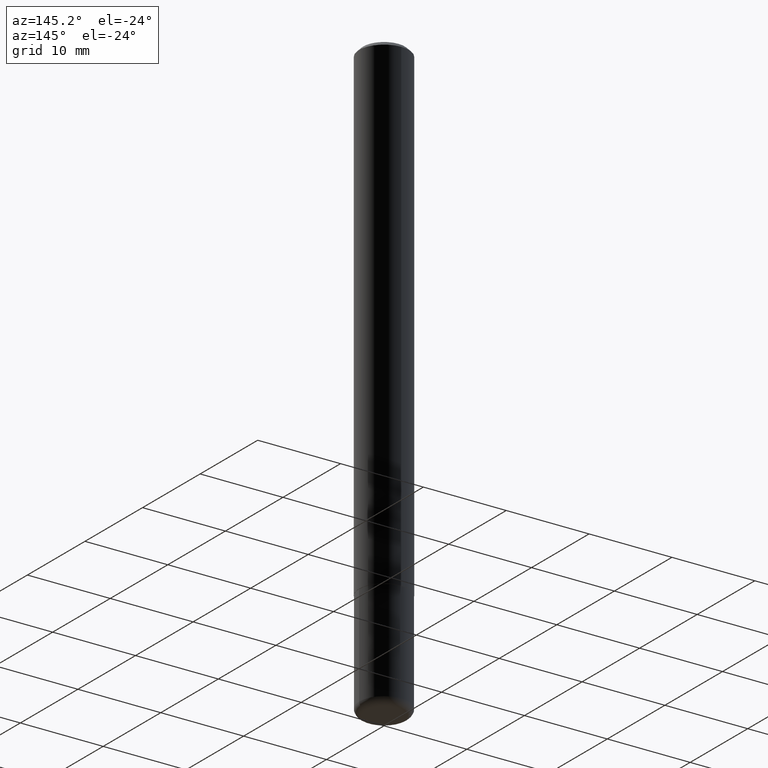
[diagram: clean part render]
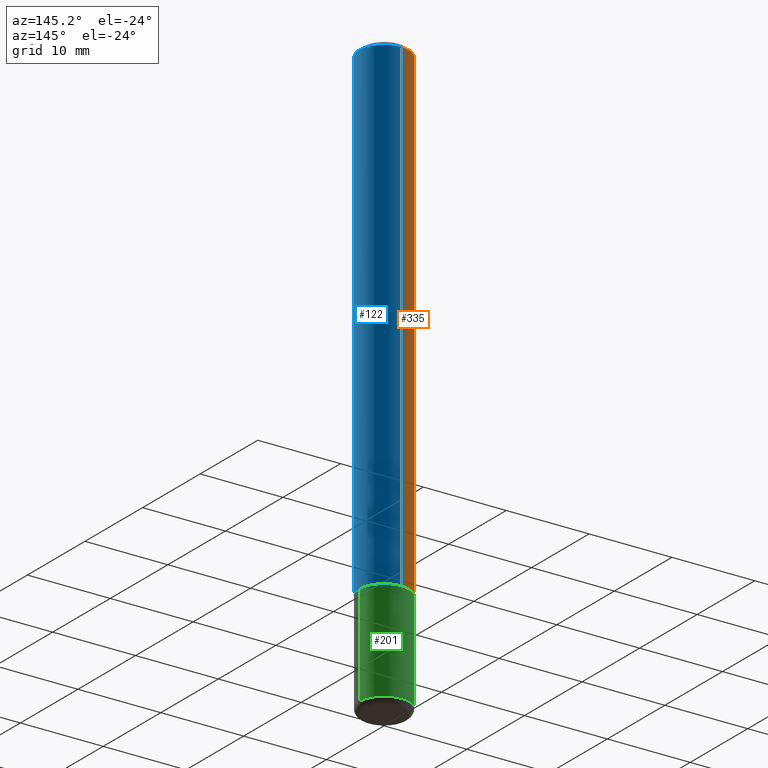
[diagram: same view with three faces highlighted in distinct colors, each labeled with its STEP entity id]
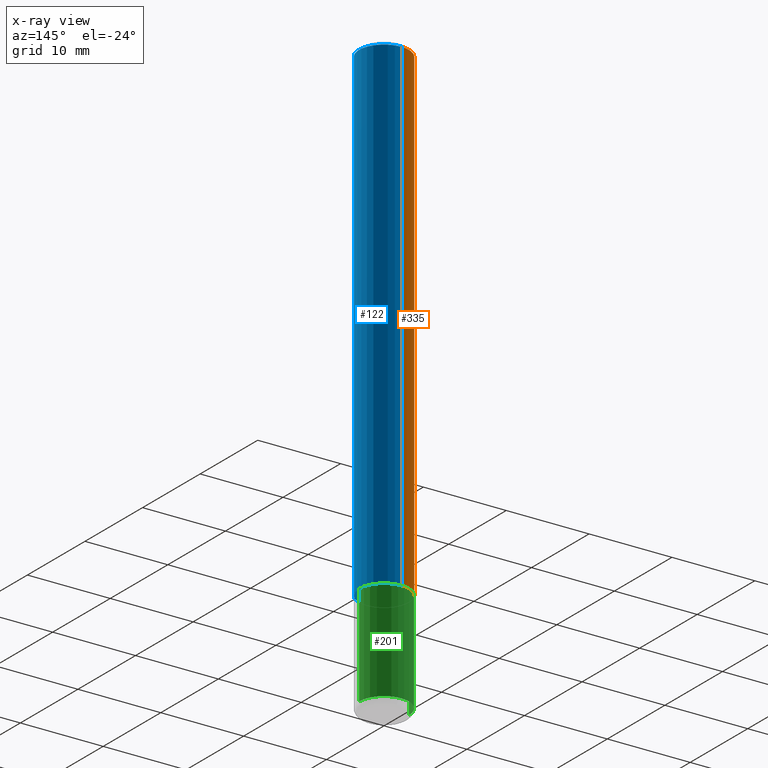
[diagram: x-ray of the same camera — body ghosted, the three highlighted faces saturated]
A machine part, auxiliary view with three faces highlighted in distinct colors.
The next image is the same camera in x-ray (body ghosted, the three faces saturated) — at least one of them is partly hidden behind the body in this view.
Their STEP definitions:

[orange] entity #335 — the highlighted cylindrical surface (edge-blend (fillet) strip) has radius 2.9997 mm, axis along (-0, 0, 1).
#7 = EDGE_CURVE ( 'NONE', #286, #386, #394, .T. ) ;
#17 = CARTESIAN_POINT ( 'NONE',  ( -8.246878922347491501E-16, -0.1181000000000001632, 4.115331183362799597E-16 ) ) ;
#43 = AXIS2_PLACEMENT_3D ( 'NONE', #348, #350, #185 ) ;
#45 = VERTEX_POINT ( 'NONE', #388 ) ;
#53 = CIRCLE ( 'NONE', #342, 0.1181000000000002881 ) ;
#60 = CARTESIAN_POINT ( 'NONE',  ( 8.246878922347486570E-16, 0.1180999999999999689, -0.02000000000000047226 ) ) ;
#62 = DIRECTION ( 'NONE',  ( -2.450263031530966947E-29, 3.484615735277555768E-15, 1.000000000000000000 ) ) ;
#67 = CIRCLE ( 'NONE', #304, 0.1181000000000000383 ) ;
#106 = ORIENTED_EDGE ( 'NONE', *, *, #301, .T. ) ;
#120 = DIRECTION ( 'NONE',  ( -6.982962677686265922E-15, -1.000000000000000000, 4.626330217890358292E-15 ) ) ;
#123 = DIRECTION ( 'NONE',  ( -6.982962677686265922E-15, -1.000000000000000000, 3.469747663417776213E-15 ) ) ;
#125 = VECTOR ( 'NONE', #171, 39.37007874015748143 ) ;
#149 = DIRECTION ( 'NONE',  ( -2.450263031530966947E-29, 3.484615735277555768E-15, 1.000000000000000000 ) ) ;
#152 = EDGE_CURVE ( 'NONE', #269, #45, #340, .T. ) ;
#171 = DIRECTION ( 'NONE',  ( -2.450263031530966667E-29, 3.484615735277555768E-15, 1.000000000000000000 ) ) ;
#185 = DIRECTION ( 'NONE',  ( -6.982962677686265922E-15, -1.000000000000000000, 3.484615735277556163E-15 ) ) ;
#223 = CARTESIAN_POINT ( 'NONE',  ( 5.689020706608598684E-29, -8.090580814167428772E-15, -2.321799999999999642 ) ) ;
#237 = CARTESIAN_POINT ( 'NONE',  ( 8.391509709326793804E-16, 0.1181000000000001632, -4.115331183362799597E-16 ) ) ;
#269 = VERTEX_POINT ( 'NONE', #412 ) ;
#281 = CYLINDRICAL_SURFACE ( 'NONE', #43, 0.1181000000000001632 ) ;
#283 = VECTOR ( 'NONE', #357, 39.37007874015748143 ) ;
#286 = VERTEX_POINT ( 'NONE', #416 ) ;
#289 = ORIENTED_EDGE ( 'NONE', *, *, #318, .F. ) ;
#298 = ORIENTED_EDGE ( 'NONE', *, *, #152, .T. ) ;
#301 = EDGE_CURVE ( 'NONE', #286, #269, #53, .T. ) ;
#304 = AXIS2_PLACEMENT_3D ( 'NONE', #312, #149, #123 ) ;
#312 = CARTESIAN_POINT ( 'NONE',  ( 4.900526063061949554E-31, -6.969231470555132589E-17, -0.02000000000000006287 ) ) ;
#318 = EDGE_CURVE ( 'NONE', #386, #45, #67, .T. ) ;
#319 = FACE_OUTER_BOUND ( 'NONE', #351, .T. ) ;
#335 = ADVANCED_FACE ( 'NONE', ( #319 ), #281, .T. ) ;
#340 = LINE ( 'NONE', #17, #125 ) ;
#342 = AXIS2_PLACEMENT_3D ( 'NONE', #223, #62, #120 ) ;
#348 = CARTESIAN_POINT ( 'NONE',  ( 0.000000000000000000, 0.000000000000000000, 0.000000000000000000 ) ) ;
#350 = DIRECTION ( 'NONE',  ( -2.450263031530966947E-29, 3.484615735277555768E-15, 1.000000000000000000 ) ) ;
#351 = EDGE_LOOP ( 'NONE', ( #358, #106, #298, #289 ) ) ;
#357 = DIRECTION ( 'NONE',  ( -2.450263031530966667E-29, 3.484615735277555768E-15, 1.000000000000000000 ) ) ;
#358 = ORIENTED_EDGE ( 'NONE', *, *, #7, .F. ) ;
#386 = VERTEX_POINT ( 'NONE', #60 ) ;
#388 = CARTESIAN_POINT ( 'NONE',  ( -8.102248135368175393E-16, -0.1181000000000001077, -0.01999999999999965347 ) ) ;
#394 = LINE ( 'NONE', #237, #283 ) ;
#412 = CARTESIAN_POINT ( 'NONE',  ( -8.246878922346931409E-16, -0.1181000000000083788, -2.321799999999999198 ) ) ;
#416 = CARTESIAN_POINT ( 'NONE',  ( 8.391509709327084696E-16, 0.1180999999999921973, -2.321800000000000530 ) ) ;

[blue] entity #122 — the highlighted cylindrical surface (edge-blend (fillet) strip) has radius 2.9997 mm, axis along (-0, 0, 1).
#7 = EDGE_CURVE ( 'NONE', #286, #386, #394, .T. ) ;
#17 = CARTESIAN_POINT ( 'NONE',  ( -8.246878922347491501E-16, -0.1181000000000001632, 4.115331183362799597E-16 ) ) ;
#29 = AXIS2_PLACEMENT_3D ( 'NONE', #84, #80, #243 ) ;
#45 = VERTEX_POINT ( 'NONE', #388 ) ;
#60 = CARTESIAN_POINT ( 'NONE',  ( 8.246878922347486570E-16, 0.1180999999999999689, -0.02000000000000047226 ) ) ;
#64 = DIRECTION ( 'NONE',  ( -2.450263031530966947E-29, 3.484615735277555768E-15, 1.000000000000000000 ) ) ;
#73 = ORIENTED_EDGE ( 'NONE', *, *, #7, .T. ) ;
#80 = DIRECTION ( 'NONE',  ( -2.450263031530966947E-29, 3.484615735277555768E-15, 1.000000000000000000 ) ) ;
#84 = CARTESIAN_POINT ( 'NONE',  ( 4.900526063061949554E-31, -6.969231470555132589E-17, -0.02000000000000006287 ) ) ;
#92 = EDGE_CURVE ( 'NONE', #45, #386, #402, .T. ) ;
#97 = DIRECTION ( 'NONE',  ( -6.982962677686265922E-15, -1.000000000000000000, 4.626330217890358292E-15 ) ) ;
#102 = AXIS2_PLACEMENT_3D ( 'NONE', #211, #177, #244 ) ;
#108 = ORIENTED_EDGE ( 'NONE', *, *, #152, .F. ) ;
#122 = ADVANCED_FACE ( 'NONE', ( #339 ), #279, .T. ) ;
#125 = VECTOR ( 'NONE', #171, 39.37007874015748143 ) ;
#152 = EDGE_CURVE ( 'NONE', #269, #45, #340, .T. ) ;
#154 = CARTESIAN_POINT ( 'NONE',  ( 5.689020706608598684E-29, -8.090580814167428772E-15, -2.321799999999999642 ) ) ;
#170 = AXIS2_PLACEMENT_3D ( 'NONE', #154, #64, #97 ) ;
#171 = DIRECTION ( 'NONE',  ( -2.450263031530966667E-29, 3.484615735277555768E-15, 1.000000000000000000 ) ) ;
#177 = DIRECTION ( 'NONE',  ( -2.450263031530966947E-29, 3.484615735277555768E-15, 1.000000000000000000 ) ) ;
#211 = CARTESIAN_POINT ( 'NONE',  ( 0.000000000000000000, 0.000000000000000000, 0.000000000000000000 ) ) ;
#233 = ORIENTED_EDGE ( 'NONE', *, *, #92, .F. ) ;
#237 = CARTESIAN_POINT ( 'NONE',  ( 8.391509709326793804E-16, 0.1181000000000001632, -4.115331183362799597E-16 ) ) ;
#243 = DIRECTION ( 'NONE',  ( -6.982962677686265922E-15, -1.000000000000000000, 3.469747663417776213E-15 ) ) ;
#244 = DIRECTION ( 'NONE',  ( -6.982962677686265922E-15, -1.000000000000000000, 3.484615735277556163E-15 ) ) ;
#269 = VERTEX_POINT ( 'NONE', #412 ) ;
#279 = CYLINDRICAL_SURFACE ( 'NONE', #102, 0.1181000000000001632 ) ;
#283 = VECTOR ( 'NONE', #357, 39.37007874015748143 ) ;
#286 = VERTEX_POINT ( 'NONE', #416 ) ;
#295 = EDGE_LOOP ( 'NONE', ( #300, #73, #233, #108 ) ) ;
#300 = ORIENTED_EDGE ( 'NONE', *, *, #347, .T. ) ;
#339 = FACE_OUTER_BOUND ( 'NONE', #295, .T. ) ;
#340 = LINE ( 'NONE', #17, #125 ) ;
#347 = EDGE_CURVE ( 'NONE', #269, #286, #349, .T. ) ;
#349 = CIRCLE ( 'NONE', #170, 0.1181000000000002881 ) ;
#357 = DIRECTION ( 'NONE',  ( -2.450263031530966667E-29, 3.484615735277555768E-15, 1.000000000000000000 ) ) ;
#386 = VERTEX_POINT ( 'NONE', #60 ) ;
#388 = CARTESIAN_POINT ( 'NONE',  ( -8.102248135368175393E-16, -0.1181000000000001077, -0.01999999999999965347 ) ) ;
#394 = LINE ( 'NONE', #237, #283 ) ;
#402 = CIRCLE ( 'NONE', #29, 0.1181000000000000383 ) ;
#412 = CARTESIAN_POINT ( 'NONE',  ( -8.246878922346931409E-16, -0.1181000000000083788, -2.321799999999999198 ) ) ;
#416 = CARTESIAN_POINT ( 'NONE',  ( 8.391509709327084696E-16, 0.1180999999999921973, -2.321800000000000530 ) ) ;

[green] entity #201 — the highlighted cylindrical surface (edge-blend (fillet) strip) has radius 2.9997 mm, axis along (-0, 0, 1).
#3 = EDGE_CURVE ( 'NONE', #71, #354, #94, .T. ) ;
#21 = AXIS2_PLACEMENT_3D ( 'NONE', #414, #316, #381 ) ;
#25 = EDGE_CURVE ( 'NONE', #313, #71, #79, .T. ) ;
#37 = VERTEX_POINT ( 'NONE', #334 ) ;
#42 = VECTOR ( 'NONE', #209, 39.37007874015748143 ) ;
#50 = LINE ( 'NONE', #116, #42 ) ;
#52 = CARTESIAN_POINT ( 'NONE',  ( 0.1181000000000000383, -8.934700746099607097E-15, -2.322799999999999976 ) ) ;
#69 = DIRECTION ( 'NONE',  ( 1.000000000000000000, -6.982962677686270655E-15, 0.000000000000000000 ) ) ;
#71 = VERTEX_POINT ( 'NONE', #52 ) ;
#74 = AXIS2_PLACEMENT_3D ( 'NONE', #239, #369, #337 ) ;
#79 = LINE ( 'NONE', #267, #409 ) ;
#93 = CARTESIAN_POINT ( 'NONE',  ( 0.1181000000000001215, -1.061165923314597048E-14, -2.803100000000000147 ) ) ;
#94 = CIRCLE ( 'NONE', #370, 0.1181000000000000383 ) ;
#116 = CARTESIAN_POINT ( 'NONE',  ( -0.1181000000000000105, 8.391509709326783943E-16, -5.809262341591044484E-30 ) ) ;
#137 = CARTESIAN_POINT ( 'NONE',  ( 5.680334943006835158E-29, -8.110012853864858834E-15, -2.322799999999999976 ) ) ;
#147 = EDGE_CURVE ( 'NONE', #37, #354, #50, .T. ) ;
#193 = ORIENTED_EDGE ( 'NONE', *, *, #25, .F. ) ;
#199 = CIRCLE ( 'NONE', #21, 0.1180999999999999966 ) ;
#201 = ADVANCED_FACE ( 'NONE', ( #274 ), #400, .T. ) ;
#202 = DIRECTION ( 'NONE',  ( -2.445468806185136597E-29, 3.491481338843145583E-15, 1.000000000000000000 ) ) ;
#209 = DIRECTION ( 'NONE',  ( -2.445468806185136877E-29, 3.491481338843145188E-15, 1.000000000000000000 ) ) ;
#225 = ORIENTED_EDGE ( 'NONE', *, *, #147, .T. ) ;
#235 = DIRECTION ( 'NONE',  ( -2.445468806185136877E-29, 3.491481338843145188E-15, 1.000000000000000000 ) ) ;
#239 = CARTESIAN_POINT ( 'NONE',  ( 0.000000000000000000, 0.000000000000000000, 0.000000000000000000 ) ) ;
#267 = CARTESIAN_POINT ( 'NONE',  ( 0.1181000000000000105, -8.246878922347482626E-16, 5.758764772215001141E-30 ) ) ;
#270 = EDGE_CURVE ( 'NONE', #313, #37, #199, .T. ) ;
#274 = FACE_OUTER_BOUND ( 'NONE', #332, .T. ) ;
#288 = CARTESIAN_POINT ( 'NONE',  ( -0.1181000000000000522, -8.109341126455360750E-15, -2.322799999999999976 ) ) ;
#313 = VERTEX_POINT ( 'NONE', #93 ) ;
#316 = DIRECTION ( 'NONE',  ( -2.445468806185136597E-29, 3.491481338843145583E-15, 1.000000000000000000 ) ) ;
#321 = ORIENTED_EDGE ( 'NONE', *, *, #3, .F. ) ;
#332 = EDGE_LOOP ( 'NONE', ( #417, #225, #321, #193 ) ) ;
#334 = CARTESIAN_POINT ( 'NONE',  ( -0.1181000000000001215, -8.947820369978543230E-15, -2.803100000000000147 ) ) ;
#337 = DIRECTION ( 'NONE',  ( 1.000000000000000000, -6.982962677686267499E-15, 4.876176775795936353E-29 ) ) ;
#354 = VERTEX_POINT ( 'NONE', #288 ) ;
#369 = DIRECTION ( 'NONE',  ( -2.445468806185136597E-29, 3.491481338843145583E-15, 1.000000000000000000 ) ) ;
#370 = AXIS2_PLACEMENT_3D ( 'NONE', #137, #202, #69 ) ;
#381 = DIRECTION ( 'NONE',  ( 1.000000000000000000, -6.982962677686273021E-15, 0.000000000000000000 ) ) ;
#400 = CYLINDRICAL_SURFACE ( 'NONE', #74, 0.1181000000000000105 ) ;
#409 = VECTOR ( 'NONE', #235, 39.37007874015748143 ) ;
#414 = CARTESIAN_POINT ( 'NONE',  ( 6.854893610617556719E-29, -9.786971340911220638E-15, -2.803100000000000147 ) ) ;
#417 = ORIENTED_EDGE ( 'NONE', *, *, #270, .T. ) ;